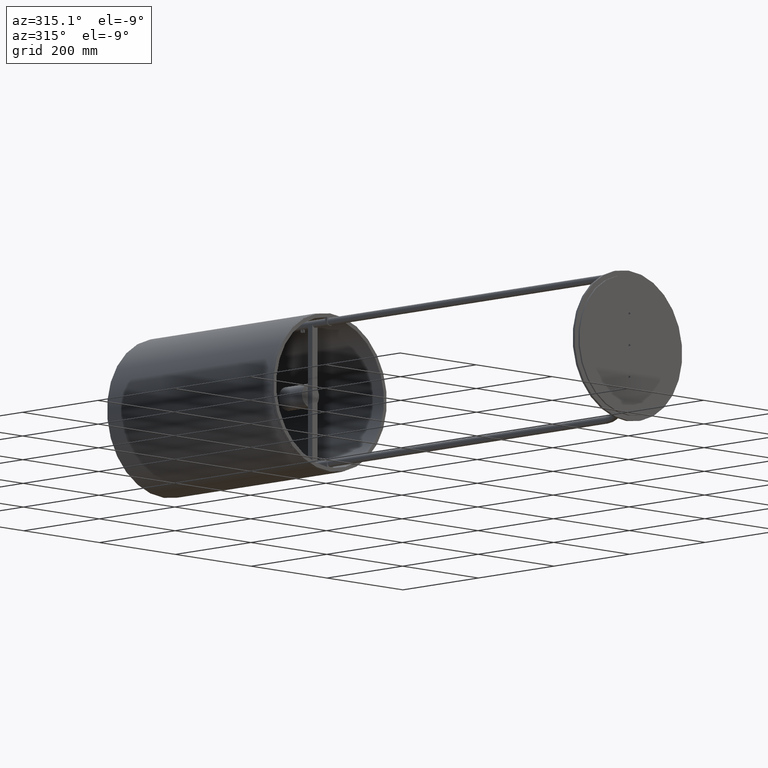
[diagram: clean part render]
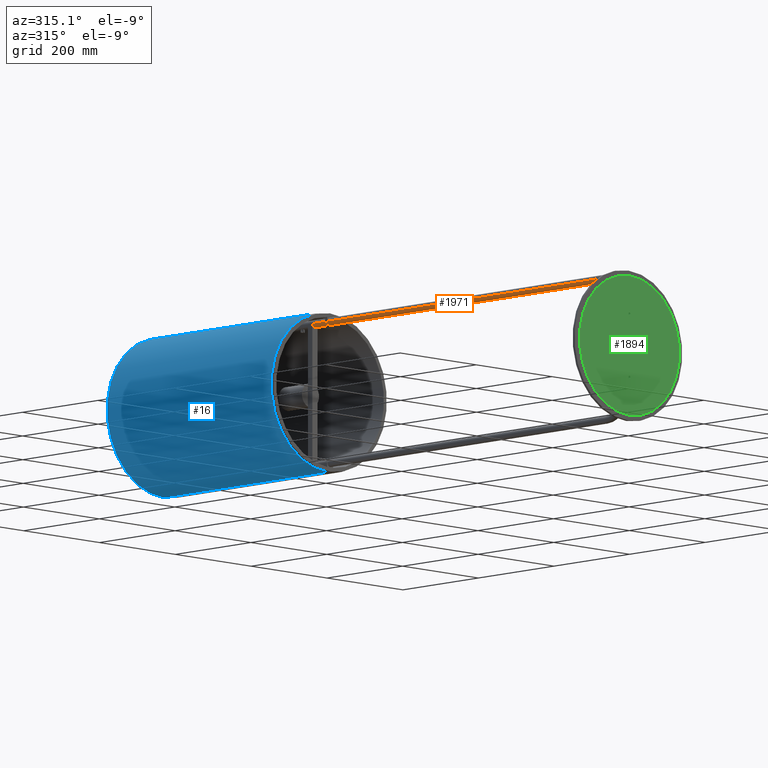
[diagram: same view with three faces highlighted in distinct colors, each labeled with its STEP entity id]
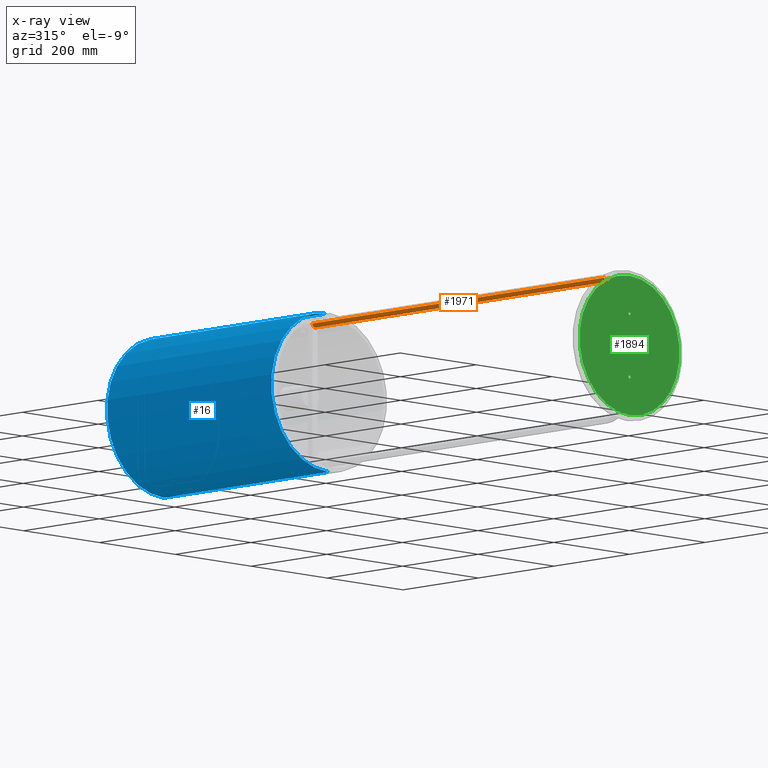
[diagram: x-ray of the same camera — body ghosted, the three highlighted faces saturated]
A machine part, auxiliary view with three faces highlighted in distinct colors.
The next image is the same camera in x-ray (body ghosted, the three faces saturated) — at least one of them is partly hidden behind the body in this view.
Their STEP definitions:

[orange] entity #1971 — the highlighted cylindrical surface (edge-blend (fillet) strip) has radius 7 mm, axis along (0, 1, -0).
#138 = CARTESIAN_POINT ( 'NONE',  ( -134.0000000000000000, -320.0000000000001700, 7.000000000000010700 ) ) ;
#354 = CARTESIAN_POINT ( 'NONE',  ( -127.0000000000000000, 452.9999999999999400, 8.572527594031499800E-016 ) ) ;
#481 = VERTEX_POINT ( 'NONE', #1165 ) ;
#606 = VERTEX_POINT ( 'NONE', #1219 ) ;
#637 = VERTEX_POINT ( 'NONE', #1267 ) ;
#1165 = CARTESIAN_POINT ( 'NONE',  ( -134.0000000000000000, -320.0000000000001700, -7.000000000000012400 ) ) ;
#1219 = CARTESIAN_POINT ( 'NONE',  ( -134.0000000000000000, 452.9999999999999400, -7.000000000000014200 ) ) ;
#1267 = CARTESIAN_POINT ( 'NONE',  ( -134.0000000000000000, 452.9999999999999400, 7.000000000000014200 ) ) ;
#1363 = VERTEX_POINT ( 'NONE', #138 ) ;
#1458 = VERTEX_POINT ( 'NONE', #354 ) ;
#1542 = AXIS2_PLACEMENT_3D ( 'NONE', #3897, #3901, #3994 ) ;
#1573 = AXIS2_PLACEMENT_3D ( 'NONE', #3477, #3655, #3656 ) ;
#1583 = AXIS2_PLACEMENT_3D ( 'NONE', #3682, #3720, #3699 ) ;
#1749 = AXIS2_PLACEMENT_3D ( 'NONE', #2894, #2896, #4433 ) ;
#1971 = ADVANCED_FACE ( 'NONE', ( #2621 ), #2613, .T. ) ;
#2103 = EDGE_CURVE ( 'NONE', #637, #1363, #6069, .T. ) ;
#2107 = EDGE_CURVE ( 'NONE', #637, #1458, #5869, .T. ) ;
#2124 = EDGE_CURVE ( 'NONE', #606, #481, #6019, .T. ) ;
#2194 = EDGE_CURVE ( 'NONE', #481, #1363, #6055, .T. ) ;
#2219 = EDGE_CURVE ( 'NONE', #1458, #606, #6061, .T. ) ;
#2613 = CYLINDRICAL_SURFACE ( 'NONE', #1749, 7.000000000000014200 ) ;
#2621 = FACE_OUTER_BOUND ( 'NONE', #7225, .T. ) ;
#2894 = CARTESIAN_POINT ( 'NONE',  ( -134.0000000000000000, 452.9999999999999400, 0.0000000000000000000 ) ) ;
#2896 = DIRECTION ( 'NONE',  ( -0.0000000000000000000, -1.000000000000000000, -0.0000000000000000000 ) ) ;
#2985 = ORIENTED_EDGE ( 'NONE', *, *, #2124, .F. ) ;
#2988 = ORIENTED_EDGE ( 'NONE', *, *, #2194, .F. ) ;
#2991 = ORIENTED_EDGE ( 'NONE', *, *, #2103, .T. ) ;
#3060 = ORIENTED_EDGE ( 'NONE', *, *, #2107, .F. ) ;
#3477 = CARTESIAN_POINT ( 'NONE',  ( -134.0000000000000000, -320.0000000000001700, 0.0000000000000000000 ) ) ;
#3652 = ORIENTED_EDGE ( 'NONE', *, *, #2219, .F. ) ;
#3655 = DIRECTION ( 'NONE',  ( 0.0000000000000000000, -1.000000000000000000, -3.965082230804122700E-015 ) ) ;
#3656 = DIRECTION ( 'NONE',  ( 0.0000000000000000000, 0.0000000000000000000, 1.000000000000000000 ) ) ;
#3682 = CARTESIAN_POINT ( 'NONE',  ( -134.0000000000000000, 452.9999999999999400, 0.0000000000000000000 ) ) ;
#3699 = DIRECTION ( 'NONE',  ( 0.0000000000000000000, 0.0000000000000000000, 1.000000000000000000 ) ) ;
#3720 = DIRECTION ( 'NONE',  ( 0.0000000000000000000, 1.000000000000000000, 0.0000000000000000000 ) ) ;
#3897 = CARTESIAN_POINT ( 'NONE',  ( -134.0000000000000000, 452.9999999999999400, 0.0000000000000000000 ) ) ;
#3901 = DIRECTION ( 'NONE',  ( 0.0000000000000000000, 1.000000000000000000, 0.0000000000000000000 ) ) ;
#3903 = DIRECTION ( 'NONE',  ( -0.0000000000000000000, -1.000000000000000000, -0.0000000000000000000 ) ) ;
#3912 = CARTESIAN_POINT ( 'NONE',  ( -134.0000000000000000, 452.9999999999999400, 7.000000000000014200 ) ) ;
#3994 = DIRECTION ( 'NONE',  ( 0.0000000000000000000, 0.0000000000000000000, 1.000000000000000000 ) ) ;
#4208 = CARTESIAN_POINT ( 'NONE',  ( -134.0000000000000000, 452.9999999999999400, -7.000000000000014200 ) ) ;
#4209 = DIRECTION ( 'NONE',  ( -0.0000000000000000000, -1.000000000000000000, -0.0000000000000000000 ) ) ;
#4433 = DIRECTION ( 'NONE',  ( 0.0000000000000000000, 0.0000000000000000000, -1.000000000000000000 ) ) ;
#5869 = CIRCLE ( 'NONE', #1542, 7.000000000000014200 ) ;
#5964 = VECTOR ( 'NONE', #4209, 1000.000000000000000 ) ;
#6019 = LINE ( 'NONE', #4208, #5964 ) ;
#6046 = VECTOR ( 'NONE', #3903, 1000.000000000000000 ) ;
#6055 = CIRCLE ( 'NONE', #1573, 7.000000000000014200 ) ;
#6061 = CIRCLE ( 'NONE', #1583, 7.000000000000014200 ) ;
#6069 = LINE ( 'NONE', #3912, #6046 ) ;
#7225 = EDGE_LOOP ( 'NONE', ( #3060, #2991, #2988, #2985, #3652 ) ) ;

[blue] entity #16 — the highlighted cylindrical surface (partial cylindrical patch) has radius 150 mm, axis along (-0, -1, -0).
#16 = ADVANCED_FACE ( 'NONE', ( #6824 ), #6436, .T. ) ;
#205 = CARTESIAN_POINT ( 'NONE',  ( 1.836970198721030100E-014, 217.2000000000001000, 150.0000000000000600 ) ) ;
#508 = VERTEX_POINT ( 'NONE', #1199 ) ;
#734 = CARTESIAN_POINT ( 'NONE',  ( 1.836970198721030100E-014, -217.1999999999995300, 150.0000000000000600 ) ) ;
#950 = DIRECTION ( 'NONE',  ( 0.0000000000000000000, 0.0000000000000000000, -1.000000000000000000 ) ) ;
#1021 = VERTEX_POINT ( 'NONE', #734 ) ;
#1055 = VERTEX_POINT ( 'NONE', #1226 ) ;
#1199 = CARTESIAN_POINT ( 'NONE',  ( 0.0000000000000000000, -217.1999999999995300, -150.0000000000000600 ) ) ;
#1226 = CARTESIAN_POINT ( 'NONE',  ( 0.0000000000000000000, 217.2000000000001000, -150.0000000000000600 ) ) ;
#1328 = CARTESIAN_POINT ( 'NONE',  ( 0.0000000000000000000, 217.5000000000000000, 0.0000000000000000000 ) ) ;
#1366 = VERTEX_POINT ( 'NONE', #205 ) ;
#1404 = DIRECTION ( 'NONE',  ( -0.0000000000000000000, -1.000000000000000000, -0.0000000000000000000 ) ) ;
#1608 = AXIS2_PLACEMENT_3D ( 'NONE', #7098, #6864, #7018 ) ;
#1623 = AXIS2_PLACEMENT_3D ( 'NONE', #6984, #8283, #8282 ) ;
#2113 = AXIS2_PLACEMENT_3D ( 'NONE', #1328, #1404, #950 ) ;
#3183 = EDGE_LOOP ( 'NONE', ( #6498, #6711, #6671, #6673 ) ) ;
#5008 = EDGE_CURVE ( 'NONE', #508, #1021, #5432, .T. ) ;
#5048 = EDGE_CURVE ( 'NONE', #1055, #508, #5610, .T. ) ;
#5323 = EDGE_CURVE ( 'NONE', #1366, #1055, #5793, .T. ) ;
#5331 = EDGE_CURVE ( 'NONE', #1366, #1021, #5799, .T. ) ;
#5432 = CIRCLE ( 'NONE', #1608, 150.0000000000000600 ) ;
#5483 = VECTOR ( 'NONE', #7032, 1000.000000000000000 ) ;
#5610 = LINE ( 'NONE', #7155, #5483 ) ;
#5756 = VECTOR ( 'NONE', #7117, 1000.000000000000000 ) ;
#5793 = CIRCLE ( 'NONE', #1623, 150.0000000000000600 ) ;
#5799 = LINE ( 'NONE', #8276, #5756 ) ;
#6436 = CYLINDRICAL_SURFACE ( 'NONE', #2113, 150.0000000000000600 ) ;
#6498 = ORIENTED_EDGE ( 'NONE', *, *, #5331, .F. ) ;
#6671 = ORIENTED_EDGE ( 'NONE', *, *, #5048, .T. ) ;
#6673 = ORIENTED_EDGE ( 'NONE', *, *, #5008, .T. ) ;
#6711 = ORIENTED_EDGE ( 'NONE', *, *, #5323, .T. ) ;
#6824 = FACE_OUTER_BOUND ( 'NONE', #3183, .T. ) ;
#6864 = DIRECTION ( 'NONE',  ( -0.0000000000000000000, 1.000000000000000000, -0.0000000000000000000 ) ) ;
#6984 = CARTESIAN_POINT ( 'NONE',  ( 0.0000000000000000000, 217.2000000000001000, 0.0000000000000000000 ) ) ;
#7018 = DIRECTION ( 'NONE',  ( 0.0000000000000000000, 0.0000000000000000000, 1.000000000000000000 ) ) ;
#7032 = DIRECTION ( 'NONE',  ( -0.0000000000000000000, -1.000000000000000000, -0.0000000000000000000 ) ) ;
#7098 = CARTESIAN_POINT ( 'NONE',  ( 0.0000000000000000000, -217.1999999999995300, 0.0000000000000000000 ) ) ;
#7117 = DIRECTION ( 'NONE',  ( -0.0000000000000000000, -1.000000000000000000, -0.0000000000000000000 ) ) ;
#7155 = CARTESIAN_POINT ( 'NONE',  ( 0.0000000000000000000, 217.5000000000000000, -150.0000000000000600 ) ) ;
#8276 = CARTESIAN_POINT ( 'NONE',  ( 1.836970198721030100E-014, 217.5000000000000000, 150.0000000000000600 ) ) ;
#8282 = DIRECTION ( 'NONE',  ( 0.0000000000000000000, 0.0000000000000000000, 1.000000000000000000 ) ) ;
#8283 = DIRECTION ( 'NONE',  ( 0.0000000000000000000, -1.000000000000000000, 0.0000000000000000000 ) ) ;

[green] entity #1894 — the highlighted planar face has unit normal (0, 1, 0).
#221 = VERTEX_POINT ( 'NONE', #680 ) ;
#297 = CARTESIAN_POINT ( 'NONE',  ( 0.0000000000000000000, 0.0000000000000000000, 0.0000000000000000000 ) ) ;
#299 = DIRECTION ( 'NONE',  ( 0.0000000000000000000, 1.000000000000000000, 0.0000000000000000000 ) ) ;
#302 = DIRECTION ( 'NONE',  ( 0.0000000000000000000, -0.0000000000000000000, 1.000000000000000000 ) ) ;
#319 = PLANE ( 'NONE',  #1837 ) ;
#565 = VERTEX_POINT ( 'NONE', #1231 ) ;
#660 = VERTEX_POINT ( 'NONE', #1302 ) ;
#680 = CARTESIAN_POINT ( 'NONE',  ( 1.616533774874506500E-014, 0.0000000000000000000, 132.0000000000000000 ) ) ;
#854 = CARTESIAN_POINT ( 'NONE',  ( 0.0000000000000000000, 0.0000000000000000000, -2.500000000000000000 ) ) ;
#904 = CARTESIAN_POINT ( 'NONE',  ( 0.0000000000000000000, 0.0000000000000000000, -132.0000000000000000 ) ) ;
#988 = VERTEX_POINT ( 'NONE', #854 ) ;
#989 = VERTEX_POINT ( 'NONE', #904 ) ;
#1006 = VERTEX_POINT ( 'NONE', #1042 ) ;
#1042 = CARTESIAN_POINT ( 'NONE',  ( 0.0000000000000000000, 0.0000000000000000000, 57.49999999999999300 ) ) ;
#1097 = CARTESIAN_POINT ( 'NONE',  ( 3.061616997868382200E-016, 0.0000000000000000000, 62.50000000000000000 ) ) ;
#1143 = VERTEX_POINT ( 'NONE', #1416 ) ;
#1231 = CARTESIAN_POINT ( 'NONE',  ( 3.061616997868383100E-016, 0.0000000000000000000, 2.500000000000000000 ) ) ;
#1302 = CARTESIAN_POINT ( 'NONE',  ( 3.061616997868382200E-016, 0.0000000000000000000, -57.49999999999999300 ) ) ;
#1398 = VERTEX_POINT ( 'NONE', #1097 ) ;
#1416 = CARTESIAN_POINT ( 'NONE',  ( 0.0000000000000000000, 0.0000000000000000000, -62.50000000000000000 ) ) ;
#1551 = AXIS2_PLACEMENT_3D ( 'NONE', #7003, #7004, #7005 ) ;
#1605 = AXIS2_PLACEMENT_3D ( 'NONE', #4670, #3312, #4616 ) ;
#1613 = AXIS2_PLACEMENT_3D ( 'NONE', #7031, #7037, #7035 ) ;
#1626 = AXIS2_PLACEMENT_3D ( 'NONE', #8272, #8274, #8273 ) ;
#1627 = AXIS2_PLACEMENT_3D ( 'NONE', #8281, #8297, #8296 ) ;
#1639 = AXIS2_PLACEMENT_3D ( 'NONE', #7927, #8088, #7837 ) ;
#1640 = AXIS2_PLACEMENT_3D ( 'NONE', #7926, #8069, #8096 ) ;
#1678 = AXIS2_PLACEMENT_3D ( 'NONE', #8280, #8275, #8295 ) ;
#1837 = AXIS2_PLACEMENT_3D ( 'NONE', #297, #299, #302 ) ;
#1894 = ADVANCED_FACE ( 'NONE', ( #2840, #2805, #2812, #2803 ), #319, .F. ) ;
#2395 = CIRCLE ( 'NONE', #1639, 2.500000000000000000 ) ;
#2516 = CIRCLE ( 'NONE', #1640, 2.500000000000000000 ) ;
#2803 = FACE_BOUND ( 'NONE', #7392, .T. ) ;
#2805 = FACE_OUTER_BOUND ( 'NONE', #7417, .T. ) ;
#2812 = FACE_BOUND ( 'NONE', #7408, .T. ) ;
#2840 = FACE_BOUND ( 'NONE', #3445, .T. ) ;
#3312 = DIRECTION ( 'NONE',  ( 0.0000000000000000000, 1.000000000000000000, 0.0000000000000000000 ) ) ;
#3445 = EDGE_LOOP ( 'NONE', ( #6577, #6578 ) ) ;
#4616 = DIRECTION ( 'NONE',  ( 0.0000000000000000000, 0.0000000000000000000, 1.000000000000000000 ) ) ;
#4670 = CARTESIAN_POINT ( 'NONE',  ( 0.0000000000000000000, 0.0000000000000000000, -60.00000000000000000 ) ) ;
#4996 = EDGE_CURVE ( 'NONE', #660, #1143, #5411, .T. ) ;
#5025 = EDGE_CURVE ( 'NONE', #1398, #1006, #5453, .T. ) ;
#5067 = EDGE_CURVE ( 'NONE', #989, #221, #5597, .T. ) ;
#5299 = EDGE_CURVE ( 'NONE', #565, #988, #2395, .T. ) ;
#5304 = EDGE_CURVE ( 'NONE', #988, #565, #2516, .T. ) ;
#5325 = EDGE_CURVE ( 'NONE', #221, #989, #5795, .T. ) ;
#5326 = EDGE_CURVE ( 'NONE', #1143, #660, #5797, .T. ) ;
#5328 = EDGE_CURVE ( 'NONE', #1006, #1398, #5753, .T. ) ;
#5411 = CIRCLE ( 'NONE', #1605, 2.500000000000002200 ) ;
#5453 = CIRCLE ( 'NONE', #1551, 2.500000000000002200 ) ;
#5597 = CIRCLE ( 'NONE', #1613, 132.0000000000000000 ) ;
#5753 = CIRCLE ( 'NONE', #1627, 2.500000000000002200 ) ;
#5795 = CIRCLE ( 'NONE', #1626, 132.0000000000000000 ) ;
#5797 = CIRCLE ( 'NONE', #1678, 2.500000000000002200 ) ;
#6567 = ORIENTED_EDGE ( 'NONE', *, *, #5328, .T. ) ;
#6570 = ORIENTED_EDGE ( 'NONE', *, *, #5326, .T. ) ;
#6573 = ORIENTED_EDGE ( 'NONE', *, *, #5025, .T. ) ;
#6575 = ORIENTED_EDGE ( 'NONE', *, *, #4996, .T. ) ;
#6576 = ORIENTED_EDGE ( 'NONE', *, *, #5325, .F. ) ;
#6577 = ORIENTED_EDGE ( 'NONE', *, *, #5304, .T. ) ;
#6578 = ORIENTED_EDGE ( 'NONE', *, *, #5299, .T. ) ;
#6580 = ORIENTED_EDGE ( 'NONE', *, *, #5067, .F. ) ;
#7003 = CARTESIAN_POINT ( 'NONE',  ( 0.0000000000000000000, 0.0000000000000000000, 60.00000000000000000 ) ) ;
#7004 = DIRECTION ( 'NONE',  ( 0.0000000000000000000, 1.000000000000000000, 0.0000000000000000000 ) ) ;
#7005 = DIRECTION ( 'NONE',  ( 0.0000000000000000000, 0.0000000000000000000, 1.000000000000000000 ) ) ;
#7031 = CARTESIAN_POINT ( 'NONE',  ( 0.0000000000000000000, 0.0000000000000000000, 0.0000000000000000000 ) ) ;
#7035 = DIRECTION ( 'NONE',  ( 0.0000000000000000000, 0.0000000000000000000, 1.000000000000000000 ) ) ;
#7037 = DIRECTION ( 'NONE',  ( 0.0000000000000000000, 1.000000000000000000, 0.0000000000000000000 ) ) ;
#7392 = EDGE_LOOP ( 'NONE', ( #6567, #6573 ) ) ;
#7408 = EDGE_LOOP ( 'NONE', ( #6570, #6575 ) ) ;
#7417 = EDGE_LOOP ( 'NONE', ( #6580, #6576 ) ) ;
#7837 = DIRECTION ( 'NONE',  ( 0.0000000000000000000, 0.0000000000000000000, 1.000000000000000000 ) ) ;
#7926 = CARTESIAN_POINT ( 'NONE',  ( 0.0000000000000000000, 0.0000000000000000000, 0.0000000000000000000 ) ) ;
#7927 = CARTESIAN_POINT ( 'NONE',  ( 0.0000000000000000000, 0.0000000000000000000, 0.0000000000000000000 ) ) ;
#8069 = DIRECTION ( 'NONE',  ( 0.0000000000000000000, 1.000000000000000000, 0.0000000000000000000 ) ) ;
#8088 = DIRECTION ( 'NONE',  ( 0.0000000000000000000, 1.000000000000000000, 0.0000000000000000000 ) ) ;
#8096 = DIRECTION ( 'NONE',  ( 0.0000000000000000000, 0.0000000000000000000, 1.000000000000000000 ) ) ;
#8272 = CARTESIAN_POINT ( 'NONE',  ( 0.0000000000000000000, 0.0000000000000000000, 0.0000000000000000000 ) ) ;
#8273 = DIRECTION ( 'NONE',  ( 0.0000000000000000000, 0.0000000000000000000, 1.000000000000000000 ) ) ;
#8274 = DIRECTION ( 'NONE',  ( 0.0000000000000000000, 1.000000000000000000, 0.0000000000000000000 ) ) ;
#8275 = DIRECTION ( 'NONE',  ( 0.0000000000000000000, 1.000000000000000000, 0.0000000000000000000 ) ) ;
#8280 = CARTESIAN_POINT ( 'NONE',  ( 0.0000000000000000000, 0.0000000000000000000, -60.00000000000000000 ) ) ;
#8281 = CARTESIAN_POINT ( 'NONE',  ( 0.0000000000000000000, 0.0000000000000000000, 60.00000000000000000 ) ) ;
#8295 = DIRECTION ( 'NONE',  ( 0.0000000000000000000, 0.0000000000000000000, 1.000000000000000000 ) ) ;
#8296 = DIRECTION ( 'NONE',  ( 0.0000000000000000000, 0.0000000000000000000, 1.000000000000000000 ) ) ;
#8297 = DIRECTION ( 'NONE',  ( 0.0000000000000000000, 1.000000000000000000, 0.0000000000000000000 ) ) ;